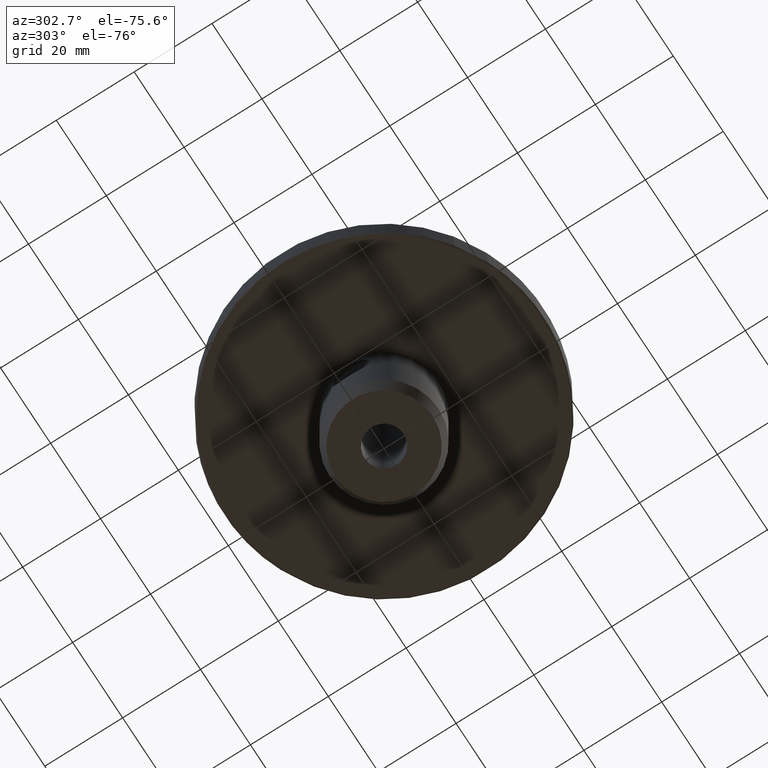
[diagram: clean part render]
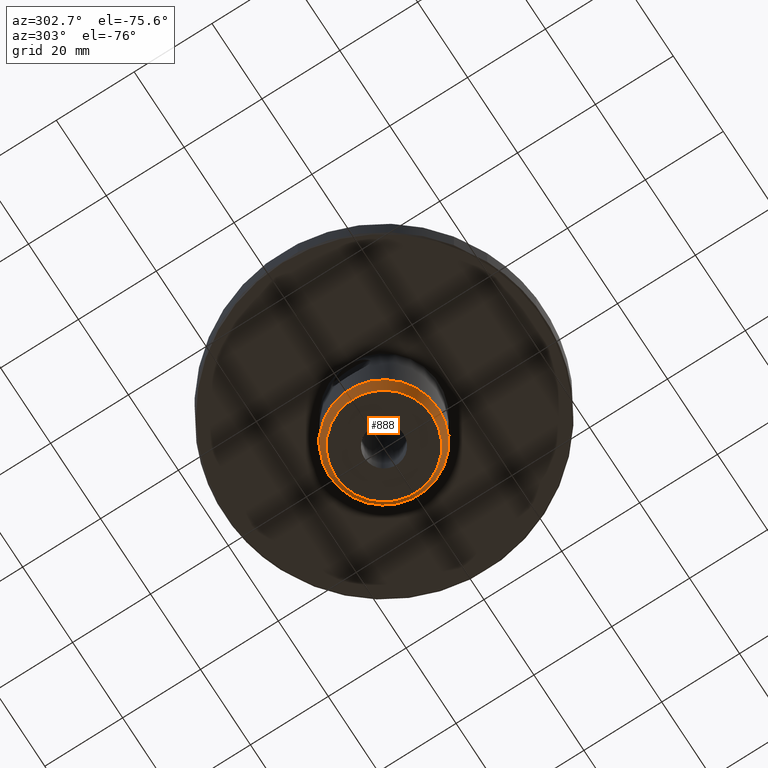
[diagram: same view with one face highlighted and labeled with its STEP entity id]
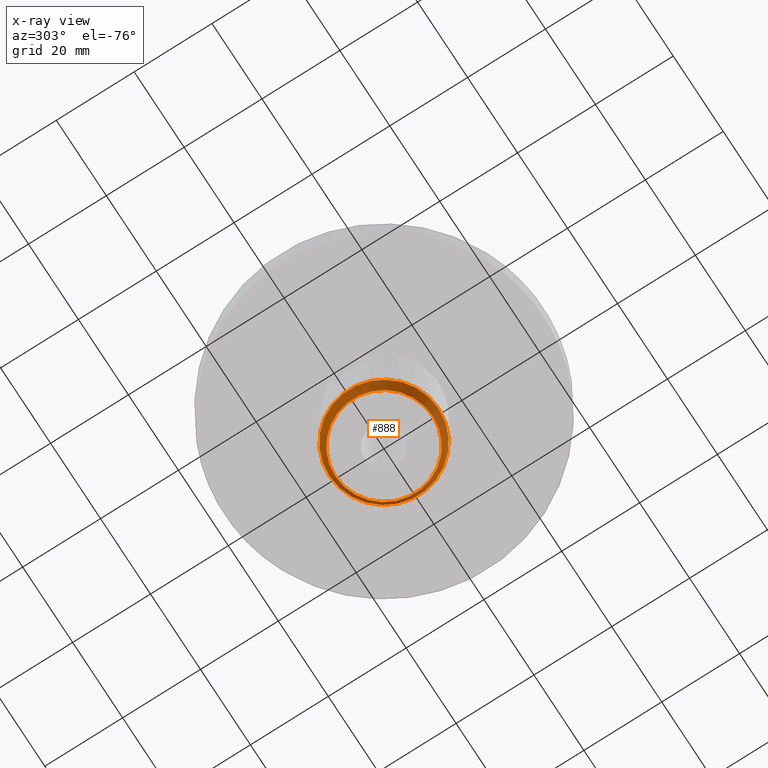
[diagram: x-ray of the same camera — body ghosted, the highlighted face saturated]
A machine part, auxiliary view. The second image highlights one B-rep face of the part: STEP entity #888.
The next image is the same camera in x-ray: the body ghosted, the highlighted face saturated — about 0% of this face is hidden behind the body in this view.
In plain terms, the highlighted conical surface has half-angle 25 deg.
Its self-contained STEP definition (entity closure, byte-faithful):
#81=CONICAL_SURFACE('',#969,12.5,0.436332312998585);
#113=CIRCLE('',#965,14.);
#115=CIRCLE('',#968,12.5);
#171=ORIENTED_EDGE('',*,*,#413,.T.);
#172=ORIENTED_EDGE('',*,*,#416,.F.);
#413=EDGE_CURVE('',#536,#536,#113,.T.);
#416=EDGE_CURVE('',#539,#539,#115,.T.);
#536=VERTEX_POINT('',#1369);
#539=VERTEX_POINT('',#1394);
#674=EDGE_LOOP('',(#171));
#675=EDGE_LOOP('',(#172));
#769=FACE_BOUND('',#674,.T.);
#770=FACE_BOUND('',#675,.T.);
#888=ADVANCED_FACE('',(#769,#770),#81,.T.);
#965=AXIS2_PLACEMENT_3D('',#1368,#1086,#1087);
#968=AXIS2_PLACEMENT_3D('',#1393,#1092,#1093);
#969=AXIS2_PLACEMENT_3D('',#1395,#1094,#1095);
#1086=DIRECTION('',(0.,0.,-1.));
#1087=DIRECTION('',(0.,1.,0.));
#1092=DIRECTION('',(0.,0.,-1.));
#1093=DIRECTION('',(0.,1.,0.));
#1094=DIRECTION('',(0.,0.,1.));
#1095=DIRECTION('',(0.,-1.,0.));
#1368=CARTESIAN_POINT('',(0.,0.,-31.7832396192357));
#1369=CARTESIAN_POINT('',(0.,14.,-31.7832396192357));
#1393=CARTESIAN_POINT('',(0.,0.,-35.));
#1394=CARTESIAN_POINT('',(0.,12.5,-35.));
#1395=CARTESIAN_POINT('',(0.,0.,-35.));